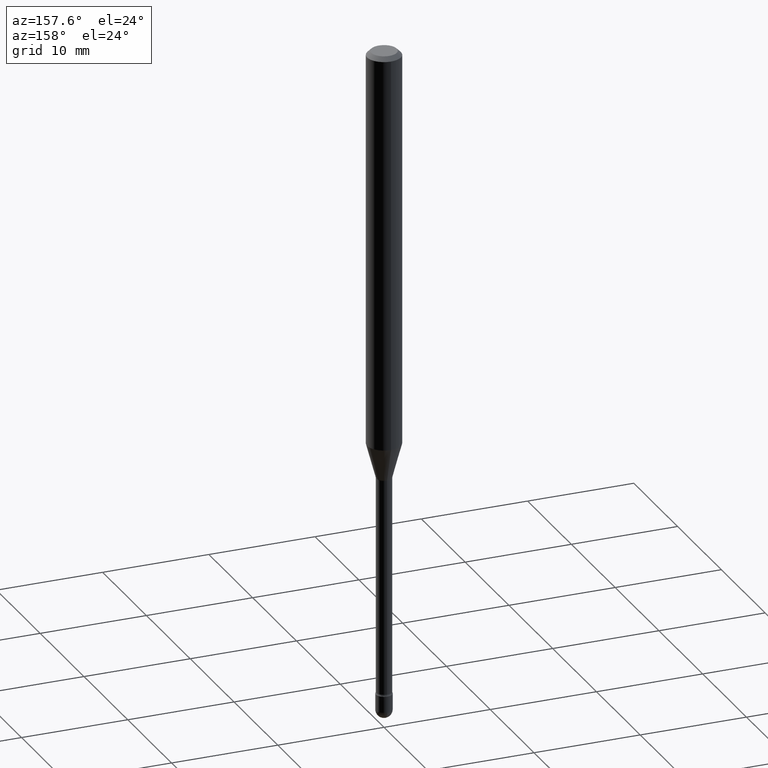
[diagram: clean part render]
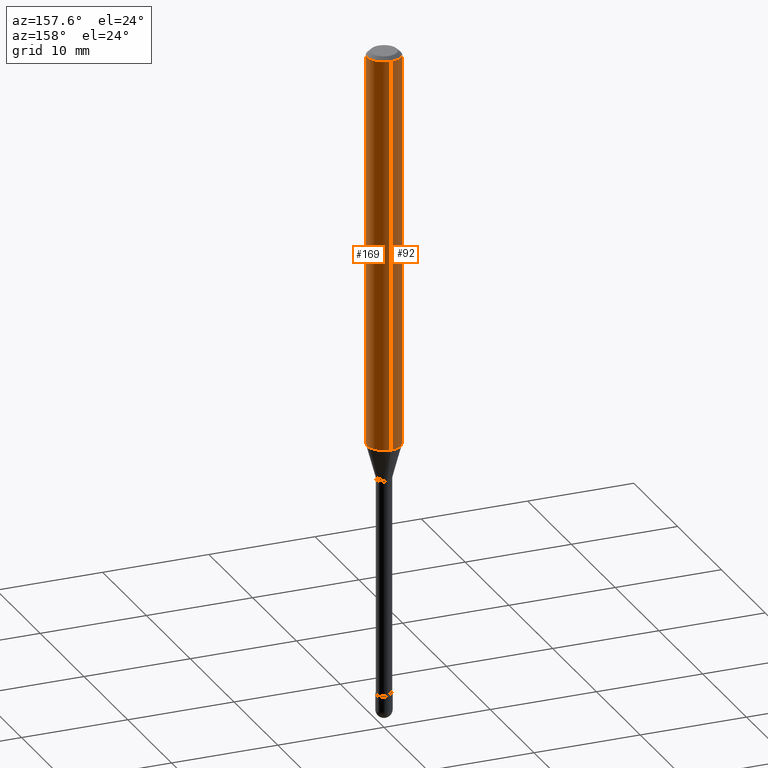
[diagram: same view with one multi-face feature highlighted, each face labeled with its STEP entity id]
A machine part, auxiliary view. The highlighted faces form ONE feature: a constant-radius fillet chain: 2 tangent blend faces with common blend radius 1.5875 mm. The faces share edges in the B-rep.
Their STEP definitions:
[1] entity #92 (Cylinder):
#1 = EDGE_CURVE ( 'NONE', #211, #287, #257, .T. ) ;
#24 = CARTESIAN_POINT ( 'NONE',  ( -4.364351673553916201E-16, -0.06250000000000000000, 6.962943778657995554E-16 ) ) ;
#34 = CARTESIAN_POINT ( 'NONE',  ( 4.440892098500987066E-16, 0.06249999999999993755, -0.01500000000000030129 ) ) ;
#37 = VERTEX_POINT ( 'NONE', #69 ) ;
#61 = CARTESIAN_POINT ( 'NONE',  ( 4.440892098500983121E-16, 0.06249999999999484440, -1.471990657300388250 ) ) ;
#62 = DIRECTION ( 'NONE',  ( -2.445430871415166747E-29, 3.491535663592855480E-15, 1.000000000000000000 ) ) ;
#69 = CARTESIAN_POINT ( 'NONE',  ( -4.364351673553558748E-16, -0.06250000000000517641, -1.471990657300387584 ) ) ;
#71 = ORIENTED_EDGE ( 'NONE', *, *, #83, .T. ) ;
#83 = EDGE_CURVE ( 'NONE', #37, #124, #422, .T. ) ;
#92 = ADVANCED_FACE ( 'NONE', ( #372 ), #360, .T. ) ;
#123 = ORIENTED_EDGE ( 'NONE', *, *, #416, .T. ) ;
#124 = VERTEX_POINT ( 'NONE', #242 ) ;
#128 = CARTESIAN_POINT ( 'NONE',  ( 3.668146307122770334E-31, -5.237303495389312310E-17, -0.01500000000000008271 ) ) ;
#142 = DIRECTION ( 'NONE',  ( -2.445430871415166747E-29, 3.491535663592855480E-15, 1.000000000000000000 ) ) ;
#144 = DIRECTION ( 'NONE',  ( -6.982962677686265922E-15, -1.000000000000000000, 3.483106191921935554E-15 ) ) ;
#150 = CARTESIAN_POINT ( 'NONE',  ( 3.599651395797071591E-29, -5.139507876439793578E-15, -1.471990657300388028 ) ) ;
#157 = AXIS2_PLACEMENT_3D ( 'NONE', #128, #142, #144 ) ;
#204 = DIRECTION ( 'NONE',  ( -2.445430871415166747E-29, 3.491535663592855086E-15, 1.000000000000000000 ) ) ;
#206 = VECTOR ( 'NONE', #204, 39.37007874015748143 ) ;
#211 = VERTEX_POINT ( 'NONE', #61 ) ;
#242 = CARTESIAN_POINT ( 'NONE',  ( -4.364351673553912750E-16, -0.06250000000000005551, -0.01499999999999986587 ) ) ;
#257 = LINE ( 'NONE', #390, #460 ) ;
#285 = CIRCLE ( 'NONE', #308, 0.06250000000000000000 ) ;
#287 = VERTEX_POINT ( 'NONE', #34 ) ;
#297 = DIRECTION ( 'NONE',  ( -2.445430871415166747E-29, 3.491535663592855086E-15, 1.000000000000000000 ) ) ;
#300 = EDGE_CURVE ( 'NONE', #287, #124, #331, .T. ) ;
#308 = AXIS2_PLACEMENT_3D ( 'NONE', #150, #451, #492 ) ;
#312 = DIRECTION ( 'NONE',  ( -6.982962677686265922E-15, -1.000000000000000000, 3.491535663592855086E-15 ) ) ;
#331 = CIRCLE ( 'NONE', #157, 0.06250000000000000000 ) ;
#333 = AXIS2_PLACEMENT_3D ( 'NONE', #499, #62, #312 ) ;
#360 = CYLINDRICAL_SURFACE ( 'NONE', #333, 0.06250000000000000000 ) ;
#372 = FACE_OUTER_BOUND ( 'NONE', #442, .T. ) ;
#390 = CARTESIAN_POINT ( 'NONE',  ( 4.440892098500625669E-16, 0.06250000000000000000, 2.598524199166925711E-16 ) ) ;
#416 = EDGE_CURVE ( 'NONE', #211, #37, #285, .T. ) ;
#422 = LINE ( 'NONE', #24, #206 ) ;
#442 = EDGE_LOOP ( 'NONE', ( #470, #123, #71, #546 ) ) ;
#451 = DIRECTION ( 'NONE',  ( -2.445430871415166747E-29, 3.491535663592855480E-15, 1.000000000000000000 ) ) ;
#460 = VECTOR ( 'NONE', #297, 39.37007874015748143 ) ;
#470 = ORIENTED_EDGE ( 'NONE', *, *, #1, .F. ) ;
#492 = DIRECTION ( 'NONE',  ( -6.982962677686265922E-15, -1.000000000000000000, 4.370956789862821150E-15 ) ) ;
#499 = CARTESIAN_POINT ( 'NONE',  ( -1.169113584055446105E-44, 1.669184350826100908E-30, 4.780733988912460139E-16 ) ) ;
#546 = ORIENTED_EDGE ( 'NONE', *, *, #300, .F. ) ;
[2] entity #169 (Cylinder):
#1 = EDGE_CURVE ( 'NONE', #211, #287, #257, .T. ) ;
#6 = AXIS2_PLACEMENT_3D ( 'NONE', #517, #473, #518 ) ;
#24 = CARTESIAN_POINT ( 'NONE',  ( -4.364351673553916201E-16, -0.06250000000000000000, 6.962943778657995554E-16 ) ) ;
#34 = CARTESIAN_POINT ( 'NONE',  ( 4.440892098500987066E-16, 0.06249999999999993755, -0.01500000000000030129 ) ) ;
#37 = VERTEX_POINT ( 'NONE', #69 ) ;
#41 = CIRCLE ( 'NONE', #439, 0.06250000000000000000 ) ;
#51 = DIRECTION ( 'NONE',  ( -2.445430871415166747E-29, 3.491535663592855480E-15, 1.000000000000000000 ) ) ;
#61 = CARTESIAN_POINT ( 'NONE',  ( 4.440892098500983121E-16, 0.06249999999999484440, -1.471990657300388250 ) ) ;
#69 = CARTESIAN_POINT ( 'NONE',  ( -4.364351673553558748E-16, -0.06250000000000517641, -1.471990657300387584 ) ) ;
#83 = EDGE_CURVE ( 'NONE', #37, #124, #422, .T. ) ;
#106 = CARTESIAN_POINT ( 'NONE',  ( 3.599651395797071591E-29, -5.139507876439793578E-15, -1.471990657300388028 ) ) ;
#124 = VERTEX_POINT ( 'NONE', #242 ) ;
#169 = ADVANCED_FACE ( 'NONE', ( #179 ), #402, .T. ) ;
#179 = FACE_OUTER_BOUND ( 'NONE', #352, .T. ) ;
#204 = DIRECTION ( 'NONE',  ( -2.445430871415166747E-29, 3.491535663592855086E-15, 1.000000000000000000 ) ) ;
#205 = EDGE_CURVE ( 'NONE', #37, #211, #41, .T. ) ;
#206 = VECTOR ( 'NONE', #204, 39.37007874015748143 ) ;
#211 = VERTEX_POINT ( 'NONE', #61 ) ;
#213 = ORIENTED_EDGE ( 'NONE', *, *, #205, .T. ) ;
#230 = ORIENTED_EDGE ( 'NONE', *, *, #271, .F. ) ;
#242 = CARTESIAN_POINT ( 'NONE',  ( -4.364351673553912750E-16, -0.06250000000000005551, -0.01499999999999986587 ) ) ;
#257 = LINE ( 'NONE', #390, #460 ) ;
#271 = EDGE_CURVE ( 'NONE', #124, #287, #426, .T. ) ;
#277 = DIRECTION ( 'NONE',  ( -2.445430871415166747E-29, 3.491535663592855480E-15, 1.000000000000000000 ) ) ;
#287 = VERTEX_POINT ( 'NONE', #34 ) ;
#297 = DIRECTION ( 'NONE',  ( -2.445430871415166747E-29, 3.491535663592855086E-15, 1.000000000000000000 ) ) ;
#304 = DIRECTION ( 'NONE',  ( -6.982962677686265922E-15, -1.000000000000000000, 3.491535663592855086E-15 ) ) ;
#311 = CARTESIAN_POINT ( 'NONE',  ( -1.169113584055446105E-44, 1.669184350826100908E-30, 4.780733988912460139E-16 ) ) ;
#322 = DIRECTION ( 'NONE',  ( -6.982962677686265922E-15, -1.000000000000000000, 4.370956789862821150E-15 ) ) ;
#325 = ORIENTED_EDGE ( 'NONE', *, *, #83, .F. ) ;
#352 = EDGE_LOOP ( 'NONE', ( #213, #432, #230, #325 ) ) ;
#390 = CARTESIAN_POINT ( 'NONE',  ( 4.440892098500625669E-16, 0.06250000000000000000, 2.598524199166925711E-16 ) ) ;
#402 = CYLINDRICAL_SURFACE ( 'NONE', #486, 0.06250000000000000000 ) ;
#422 = LINE ( 'NONE', #24, #206 ) ;
#426 = CIRCLE ( 'NONE', #6, 0.06250000000000000000 ) ;
#432 = ORIENTED_EDGE ( 'NONE', *, *, #1, .T. ) ;
#439 = AXIS2_PLACEMENT_3D ( 'NONE', #106, #277, #322 ) ;
#460 = VECTOR ( 'NONE', #297, 39.37007874015748143 ) ;
#473 = DIRECTION ( 'NONE',  ( -2.445430871415166747E-29, 3.491535663592855480E-15, 1.000000000000000000 ) ) ;
#486 = AXIS2_PLACEMENT_3D ( 'NONE', #311, #51, #304 ) ;
#517 = CARTESIAN_POINT ( 'NONE',  ( 3.668146307122770334E-31, -5.237303495389312310E-17, -0.01500000000000008271 ) ) ;
#518 = DIRECTION ( 'NONE',  ( -6.982962677686265922E-15, -1.000000000000000000, 3.483106191921935554E-15 ) ) ;